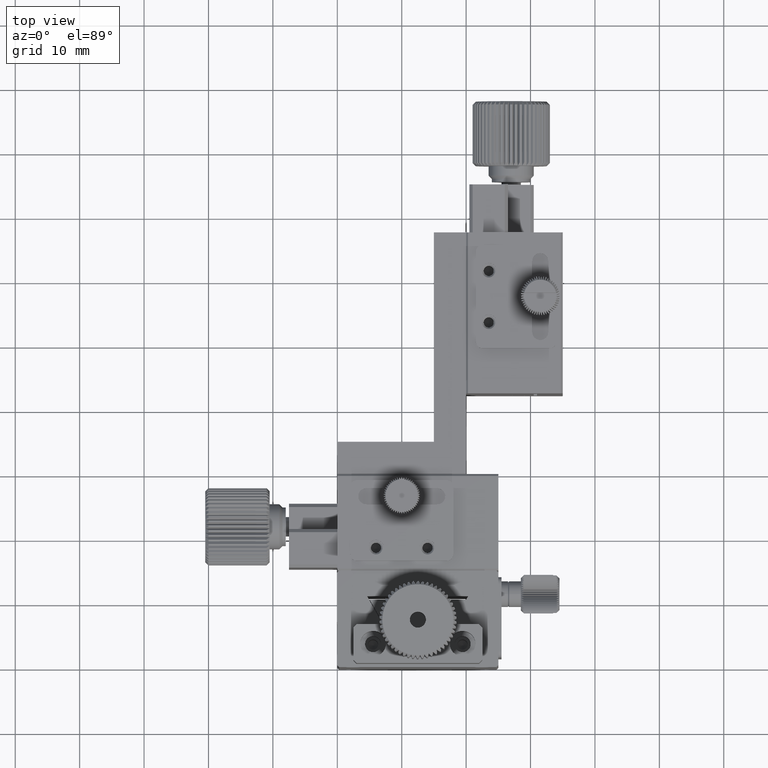
[diagram: clean part render]
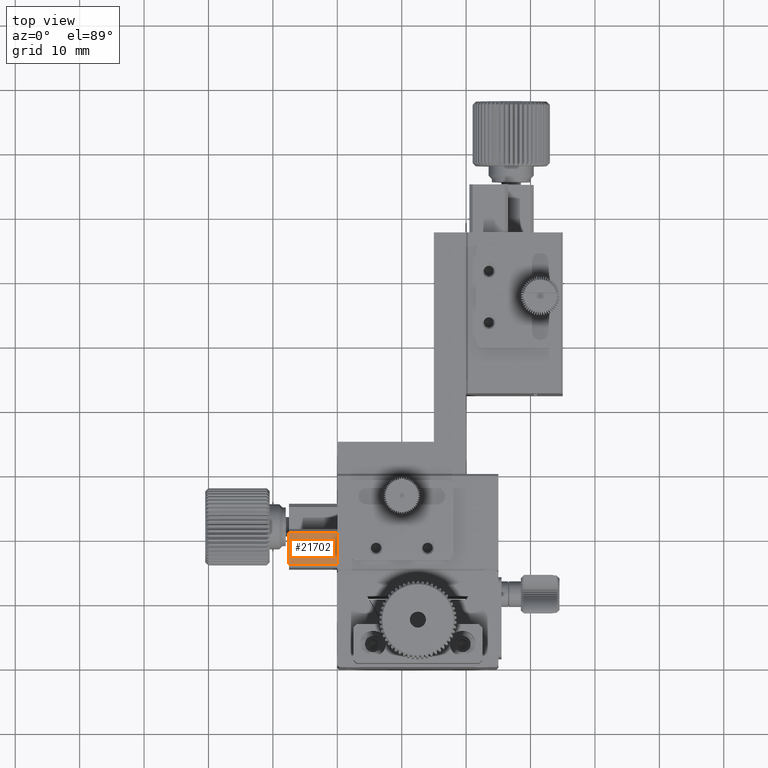
[diagram: same view with one face highlighted and labeled with its STEP entity id]
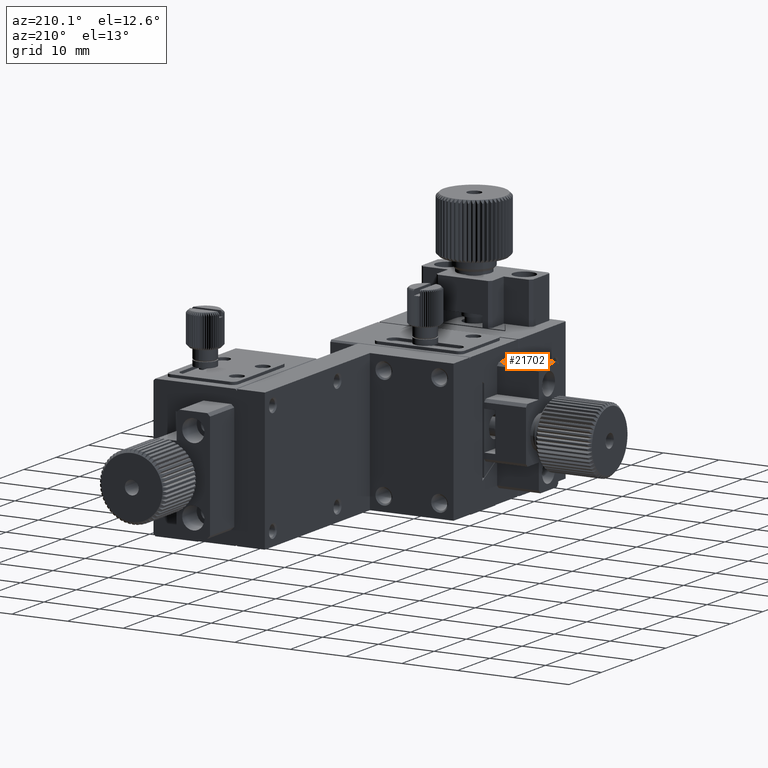
[diagram: same view with one face highlighted and labeled with its STEP entity id]
A machine part, top view. The second image highlights one B-rep face of the part: STEP entity #21702.
A second angle (auxiliary view) of the same face is appended — the face is thin or edge-on in the first view.
In plain terms, the highlighted planar face has unit normal (0, 0, 1).
Its self-contained STEP definition (entity closure, byte-faithful):
#903 = LINE ( 'NONE', #12418, #39937 ) ;
#2594 = VECTOR ( 'NONE', #31971, 1000.000000000000000 ) ;
#2806 = VERTEX_POINT ( 'NONE', #19184 ) ;
#4168 = CARTESIAN_POINT ( 'NONE',  ( -20.00000000000000000, -15.00000000000000000, -2.500000000000000000 ) ) ;
#6980 = EDGE_CURVE ( 'NONE', #28087, #2806, #7922, .T. ) ;
#7654 = VECTOR ( 'NONE', #8809, 1000.000000000000000 ) ;
#7922 = LINE ( 'NONE', #41273, #2594 ) ;
#8809 = DIRECTION ( 'NONE',  ( -0.000000000000000000, 1.000000000000000000, 0.000000000000000000 ) ) ;
#10678 = LINE ( 'NONE', #11478, #23352 ) ;
#10960 = FACE_OUTER_BOUND ( 'NONE', #53211, .T. ) ;
#11219 = DIRECTION ( 'NONE',  ( 1.000000000000000000, 0.000000000000000000, -0.000000000000000000 ) ) ;
#11478 = CARTESIAN_POINT ( 'NONE',  ( -27.50000000000000000, -9.000000000000000000, -2.500000000000000000 ) ) ;
#12418 = CARTESIAN_POINT ( 'NONE',  ( -27.50000000000000000, -13.99999999999999822, -2.500000000000000000 ) ) ;
#13904 = CARTESIAN_POINT ( 'NONE',  ( -19.99999999999999645, -13.99999999999999822, -2.500000000000000000 ) ) ;
#15318 = DIRECTION ( 'NONE',  ( -1.000000000000000000, -0.000000000000000000, 0.000000000000000000 ) ) ;
#18406 = ORIENTED_EDGE ( 'NONE', *, *, #33950, .T. ) ;
#19184 = CARTESIAN_POINT ( 'NONE',  ( -27.50000000000000000, -13.99999999999999822, -2.500000000000000000 ) ) ;
#19359 = VERTEX_POINT ( 'NONE', #13904 ) ;
#21702 = ADVANCED_FACE ( 'NONE', ( #10960 ), #36383, .T. ) ;
#23210 = CARTESIAN_POINT ( 'NONE',  ( -27.50000000000000000, -9.000000000000000000, -2.500000000000000444 ) ) ;
#23352 = VECTOR ( 'NONE', #15318, 1000.000000000000000 ) ;
#23845 = ORIENTED_EDGE ( 'NONE', *, *, #6980, .T. ) ;
#28087 = VERTEX_POINT ( 'NONE', #23210 ) ;
#28818 = DIRECTION ( 'NONE',  ( 1.000000000000000000, 0.000000000000000000, -0.000000000000000000 ) ) ;
#31971 = DIRECTION ( 'NONE',  ( 0.000000000000000000, -1.000000000000000000, -0.000000000000000000 ) ) ;
#33421 = ORIENTED_EDGE ( 'NONE', *, *, #44524, .T. ) ;
#33685 = LINE ( 'NONE', #4168, #7654 ) ;
#33777 = EDGE_CURVE ( 'NONE', #19359, #44861, #33685, .T. ) ;
#33950 = EDGE_CURVE ( 'NONE', #44861, #28087, #10678, .T. ) ;
#36383 = PLANE ( 'NONE',  #36411 ) ;
#36411 = AXIS2_PLACEMENT_3D ( 'NONE', #41271, #48654, #11219 ) ;
#36986 = CARTESIAN_POINT ( 'NONE',  ( -20.00000000000000000, -9.000000000000000000, -2.500000000000000000 ) ) ;
#39937 = VECTOR ( 'NONE', #28818, 1000.000000000000000 ) ;
#41271 = CARTESIAN_POINT ( 'NONE',  ( -27.50000000000000000, -9.000000000000000000, -2.500000000000000000 ) ) ;
#41273 = CARTESIAN_POINT ( 'NONE',  ( -27.50000000000000000, -9.000000000000000000, -2.500000000000000000 ) ) ;
#44524 = EDGE_CURVE ( 'NONE', #2806, #19359, #903, .T. ) ;
#44861 = VERTEX_POINT ( 'NONE', #36986 ) ;
#48654 = DIRECTION ( 'NONE',  ( 0.000000000000000000, 0.000000000000000000, 1.000000000000000000 ) ) ;
#50451 = ORIENTED_EDGE ( 'NONE', *, *, #33777, .T. ) ;
#53211 = EDGE_LOOP ( 'NONE', ( #23845, #33421, #50451, #18406 ) ) ;